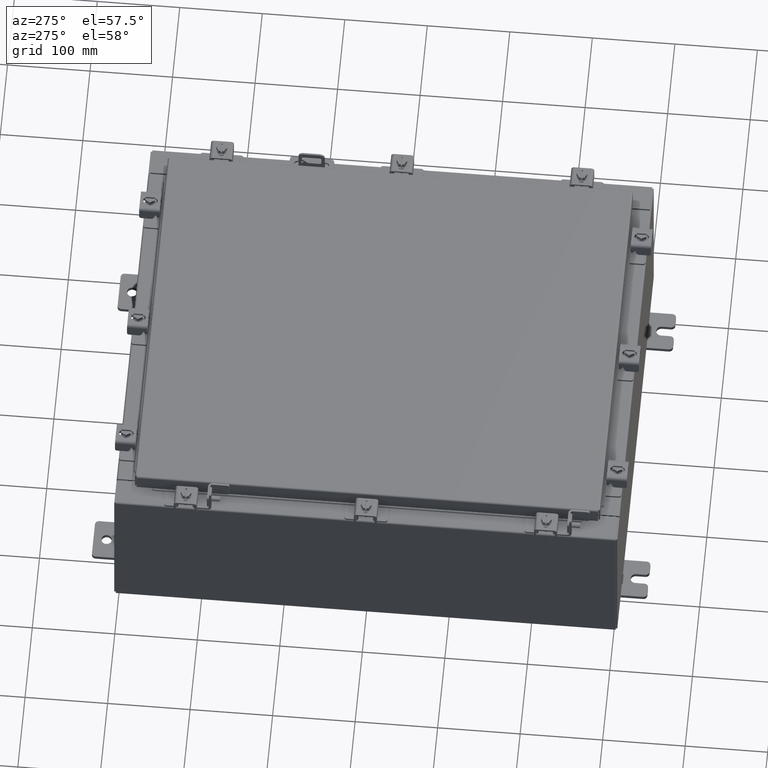
[diagram: clean part render]
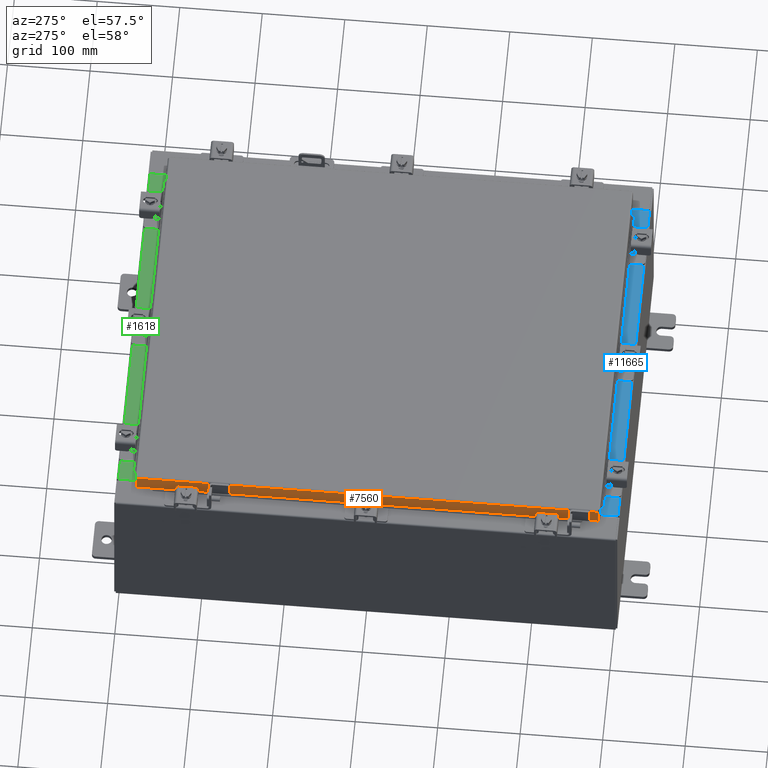
[diagram: same view with three faces highlighted in distinct colors, each labeled with its STEP entity id]
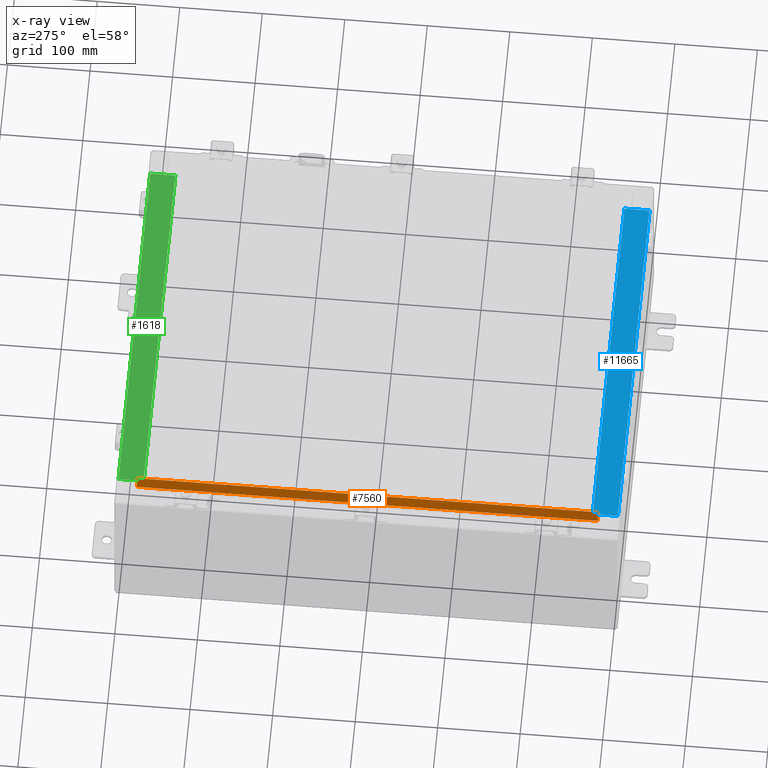
[diagram: x-ray of the same camera — body ghosted, the three highlighted faces saturated]
A machine part, auxiliary view with three faces highlighted in distinct colors.
The next image is the same camera in x-ray (body ghosted, the three faces saturated) — at least one of them is partly hidden behind the body in this view.
Their STEP definitions:

[orange] entity #7560 — the highlighted planar face has unit normal (1, 0, -0).
#227 = AXIS2_PLACEMENT_3D ( 'NONE', #7885, #14923, #4458 ) ;
#304 = DIRECTION ( 'NONE',  ( 4.379057701015054300E-047, 1.000000000000000000, 1.169666303398706600E-016 ) ) ;
#456 = VECTOR ( 'NONE', #8679, 39.37007874015748100 ) ;
#744 = VECTOR ( 'NONE', #10430, 39.37007874015748100 ) ;
#901 = VECTOR ( 'NONE', #4799, 39.37007874015748100 ) ;
#1503 = EDGE_CURVE ( 'NONE', #9897, #1837, #10684, .T. ) ;
#1673 = CARTESIAN_POINT ( 'NONE',  ( -9.077999999999999400, -11.00515786437627100, -0.07469999999999978000 ) ) ;
#1769 = EDGE_CURVE ( 'NONE', #16242, #13405, #10410, .T. ) ;
#1837 = VERTEX_POINT ( 'NONE', #17031 ) ;
#2161 = CARTESIAN_POINT ( 'NONE',  ( -9.078000000000001200, -11.09400000000000100, -0.8499999999999996400 ) ) ;
#4458 = DIRECTION ( 'NONE',  ( -2.818880942772360100E-015, 0.0000000000000000000, -1.000000000000000000 ) ) ;
#4731 = DIRECTION ( 'NONE',  ( -2.818880942772360100E-015, 6.982962677686267500E-015, -1.000000000000000000 ) ) ;
#4799 = DIRECTION ( 'NONE',  ( 4.379057701015054300E-047, 1.000000000000000000, 1.169666303398706600E-016 ) ) ;
#5086 = LINE ( 'NONE', #1673, #456 ) ;
#5358 = LINE ( 'NONE', #22582, #744 ) ;
#5718 = CARTESIAN_POINT ( 'NONE',  ( -9.078000000000001200, -11.00515786437626700, -0.8499999999999996400 ) ) ;
#6711 = DIRECTION ( 'NONE',  ( 3.297150052053607100E-031, -1.000000000000000000, -8.987264781119274900E-046 ) ) ;
#7108 = EDGE_CURVE ( 'NONE', #13405, #9897, #5086, .T. ) ;
#7560 = ADVANCED_FACE ( 'NONE', ( #21184 ), #20136, .F. ) ;
#7718 = EDGE_CURVE ( 'NONE', #1837, #13502, #5358, .T. ) ;
#7855 = EDGE_CURVE ( 'NONE', #13502, #9803, #21753, .T. ) ;
#7885 = CARTESIAN_POINT ( 'NONE',  ( -9.077999999999999400, -2.993152817254264100E-030, 2.585061485449906600E-014 ) ) ;
#8244 = CARTESIAN_POINT ( 'NONE',  ( -9.077999999999999400, 11.00515786437626700, 1.026992214834840400E-013 ) ) ;
#8679 = DIRECTION ( 'NONE',  ( -2.818880942772360100E-015, 6.982962677686267500E-015, -1.000000000000000000 ) ) ;
#9803 = VERTEX_POINT ( 'NONE', #19494 ) ;
#9897 = VERTEX_POINT ( 'NONE', #5718 ) ;
#10187 = EDGE_CURVE ( 'NONE', #16242, #9803, #14648, .T. ) ;
#10410 = LINE ( 'NONE', #12654, #19191 ) ;
#10430 = DIRECTION ( 'NONE',  ( -0.0000000000000000000, 1.000000000000000000, -0.0000000000000000000 ) ) ;
#10684 = LINE ( 'NONE', #2161, #901 ) ;
#10724 = CARTESIAN_POINT ( 'NONE',  ( -9.078000000000001200, -11.09400000000000100, -0.8499999999999996400 ) ) ;
#11609 = EDGE_LOOP ( 'NONE', ( #22216, #20262, #14785, #16106, #18145, #15568 ) ) ;
#12591 = CARTESIAN_POINT ( 'NONE',  ( -9.077999999999999400, 11.00515786437626900, -0.08770000000000007000 ) ) ;
#12654 = CARTESIAN_POINT ( 'NONE',  ( -9.077999999999999400, -11.09400000000000100, -0.08770000000000007000 ) ) ;
#13405 = VERTEX_POINT ( 'NONE', #15854 ) ;
#13502 = VERTEX_POINT ( 'NONE', #21346 ) ;
#14117 = VECTOR ( 'NONE', #4731, 39.37007874015748100 ) ;
#14648 = LINE ( 'NONE', #8244, #14117 ) ;
#14785 = ORIENTED_EDGE ( 'NONE', *, *, #7855, .F. ) ;
#14923 = DIRECTION ( 'NONE',  ( 1.000000000000000000, 3.297150052053607100E-031, -2.818880942772360100E-015 ) ) ;
#15568 = ORIENTED_EDGE ( 'NONE', *, *, #7108, .F. ) ;
#15854 = CARTESIAN_POINT ( 'NONE',  ( -9.077999999999999400, -11.00515786437626900, -0.08770000000000007000 ) ) ;
#16106 = ORIENTED_EDGE ( 'NONE', *, *, #7718, .F. ) ;
#16242 = VERTEX_POINT ( 'NONE', #12591 ) ;
#17031 = CARTESIAN_POINT ( 'NONE',  ( -9.077999999999994100, -10.25515786437626900, -0.8500000000000005300 ) ) ;
#18145 = ORIENTED_EDGE ( 'NONE', *, *, #1503, .F. ) ;
#19191 = VECTOR ( 'NONE', #6711, 39.37007874015748100 ) ;
#19494 = CARTESIAN_POINT ( 'NONE',  ( -9.078000000000001200, 11.00515786437627100, -0.8499999999999970900 ) ) ;
#20136 = PLANE ( 'NONE',  #227 ) ;
#20262 = ORIENTED_EDGE ( 'NONE', *, *, #10187, .T. ) ;
#21184 = FACE_OUTER_BOUND ( 'NONE', #11609, .T. ) ;
#21210 = VECTOR ( 'NONE', #304, 39.37007874015748100 ) ;
#21346 = CARTESIAN_POINT ( 'NONE',  ( -9.077999999999994100, 10.25515786437626900, -0.8500000000000005300 ) ) ;
#21753 = LINE ( 'NONE', #10724, #21210 ) ;
#22216 = ORIENTED_EDGE ( 'NONE', *, *, #1769, .F. ) ;
#22582 = CARTESIAN_POINT ( 'NONE',  ( -9.077999999999994100, -10.25515786437626900, -0.8500000000000005300 ) ) ;

[blue] entity #11665 — the highlighted planar face has unit normal (-0, -0, 1).
#1092 = LINE ( 'NONE', #15028, #15002 ) ;
#1319 = VECTOR ( 'NONE', #19324, 39.37007874015748100 ) ;
#2624 = EDGE_CURVE ( 'NONE', #20792, #3139, #19421, .T. ) ;
#2631 = CARTESIAN_POINT ( 'NONE',  ( 8.637200000000000000, -0.08769999999999965300, 4.000000000000000000 ) ) ;
#2901 = PLANE ( 'NONE',  #10776 ) ;
#3139 = VERTEX_POINT ( 'NONE', #12187 ) ;
#3468 = EDGE_CURVE ( 'NONE', #15677, #4896, #1092, .T. ) ;
#3484 = LINE ( 'NONE', #16828, #8116 ) ;
#3571 = CARTESIAN_POINT ( 'NONE',  ( 8.637200000000000000, -1.300299999999999800, 4.000000000000004400 ) ) ;
#4636 = DIRECTION ( 'NONE',  ( 0.0000000000000000000, 3.566381192773190000E-015, 1.000000000000000000 ) ) ;
#4896 = VERTEX_POINT ( 'NONE', #16822 ) ;
#5191 = EDGE_LOOP ( 'NONE', ( #20080, #20566, #5921, #12388 ) ) ;
#5921 = ORIENTED_EDGE ( 'NONE', *, *, #10352, .F. ) ;
#5930 = LINE ( 'NONE', #3571, #1319 ) ;
#6022 = VECTOR ( 'NONE', #7280, 39.37007874015748100 ) ;
#6290 = EDGE_CURVE ( 'NONE', #3139, #4896, #3484, .T. ) ;
#6333 = DIRECTION ( 'NONE',  ( -0.0000000000000000000, 1.000000000000000000, -3.566381192773190000E-015 ) ) ;
#6488 = CARTESIAN_POINT ( 'NONE',  ( 8.637200000000000000, -1.287299999999999900, 4.000000000000004400 ) ) ;
#6701 = FACE_OUTER_BOUND ( 'NONE', #5191, .T. ) ;
#7280 = DIRECTION ( 'NONE',  ( -1.000000000000000000, 0.0000000000000000000, 0.0000000000000000000 ) ) ;
#8116 = VECTOR ( 'NONE', #6333, 39.37007874015748100 ) ;
#10352 = EDGE_CURVE ( 'NONE', #15677, #20792, #5930, .T. ) ;
#10521 = CARTESIAN_POINT ( 'NONE',  ( 8.637200000000000000, -1.287299999999999900, 4.000000000000003600 ) ) ;
#10776 = AXIS2_PLACEMENT_3D ( 'NONE', #16806, #4636, #16884 ) ;
#11665 = ADVANCED_FACE ( 'NONE', ( #6701 ), #2901, .T. ) ;
#12187 = CARTESIAN_POINT ( 'NONE',  ( -8.637200000000000000, -1.287299999999999200, 4.000000000000004400 ) ) ;
#12388 = ORIENTED_EDGE ( 'NONE', *, *, #3468, .T. ) ;
#15002 = VECTOR ( 'NONE', #18427, 39.37007874015748100 ) ;
#15028 = CARTESIAN_POINT ( 'NONE',  ( -2.773851121247567100E-018, -0.08770000000000000000, 4.000000000000000900 ) ) ;
#15677 = VERTEX_POINT ( 'NONE', #2631 ) ;
#16806 = CARTESIAN_POINT ( 'NONE',  ( 0.0000000000000000000, 1.425992975200418500E-014, 4.000000000000000000 ) ) ;
#16822 = CARTESIAN_POINT ( 'NONE',  ( -8.637200000000000000, -0.08770000000000000000, 4.000000000000000000 ) ) ;
#16828 = CARTESIAN_POINT ( 'NONE',  ( -8.637200000000000000, -0.07469999999999973900, 4.000000000000000000 ) ) ;
#16884 = DIRECTION ( 'NONE',  ( 0.0000000000000000000, -1.000000000000000000, 3.566381192773190000E-015 ) ) ;
#18427 = DIRECTION ( 'NONE',  ( -1.000000000000000000, 3.162886113166609200E-017, -1.128005754888089100E-031 ) ) ;
#19324 = DIRECTION ( 'NONE',  ( -0.0000000000000000000, -1.000000000000000000, 3.566381192773190000E-015 ) ) ;
#19421 = LINE ( 'NONE', #10521, #6022 ) ;
#20080 = ORIENTED_EDGE ( 'NONE', *, *, #6290, .F. ) ;
#20566 = ORIENTED_EDGE ( 'NONE', *, *, #2624, .F. ) ;
#20792 = VERTEX_POINT ( 'NONE', #6488 ) ;

[green] entity #1618 — the highlighted planar face has unit normal (0, 0, 1).
#449 = CARTESIAN_POINT ( 'NONE',  ( 8.637200000000000000, -1.300299999999999800, 4.000000000000004400 ) ) ;
#506 = VECTOR ( 'NONE', #2179, 39.37007874015748100 ) ;
#1613 = CARTESIAN_POINT ( 'NONE',  ( 8.637200000000000000, -1.287299999999999900, 4.000000000000003600 ) ) ;
#1618 = ADVANCED_FACE ( 'NONE', ( #8529 ), #8418, .T. ) ;
#1830 = LINE ( 'NONE', #16078, #15186 ) ;
#2179 = DIRECTION ( 'NONE',  ( -0.0000000000000000000, -1.000000000000000000, 3.566381192773190000E-015 ) ) ;
#2643 = DIRECTION ( 'NONE',  ( 0.0000000000000000000, -1.000000000000000000, 3.566381192773190000E-015 ) ) ;
#5257 = VERTEX_POINT ( 'NONE', #18005 ) ;
#7318 = EDGE_CURVE ( 'NONE', #10933, #21622, #1830, .T. ) ;
#7941 = CARTESIAN_POINT ( 'NONE',  ( 8.637200000000000000, -0.08769999999999965300, 4.000000000000000000 ) ) ;
#8028 = ORIENTED_EDGE ( 'NONE', *, *, #7318, .T. ) ;
#8418 = PLANE ( 'NONE',  #11897 ) ;
#8526 = ORIENTED_EDGE ( 'NONE', *, *, #16945, .F. ) ;
#8529 = FACE_OUTER_BOUND ( 'NONE', #13538, .T. ) ;
#10233 = CARTESIAN_POINT ( 'NONE',  ( -8.637200000000000000, -0.08770000000000000000, 4.000000000000000000 ) ) ;
#10368 = VERTEX_POINT ( 'NONE', #14428 ) ;
#10933 = VERTEX_POINT ( 'NONE', #7941 ) ;
#10992 = VECTOR ( 'NONE', #20367, 39.37007874015748100 ) ;
#11897 = AXIS2_PLACEMENT_3D ( 'NONE', #13027, #13261, #2643 ) ;
#13027 = CARTESIAN_POINT ( 'NONE',  ( 0.0000000000000000000, 1.425992975200418500E-014, 4.000000000000000000 ) ) ;
#13261 = DIRECTION ( 'NONE',  ( 0.0000000000000000000, 3.566381192773190000E-015, 1.000000000000000000 ) ) ;
#13538 = EDGE_LOOP ( 'NONE', ( #17534, #14655, #8526, #8028 ) ) ;
#14425 = LINE ( 'NONE', #449, #506 ) ;
#14428 = CARTESIAN_POINT ( 'NONE',  ( -8.637200000000000000, -1.287299999999999200, 4.000000000000004400 ) ) ;
#14655 = ORIENTED_EDGE ( 'NONE', *, *, #19463, .F. ) ;
#15186 = VECTOR ( 'NONE', #17845, 39.37007874015748100 ) ;
#15715 = VECTOR ( 'NONE', #17336, 39.37007874015748100 ) ;
#16078 = CARTESIAN_POINT ( 'NONE',  ( -2.773851121247567100E-018, -0.08770000000000000000, 4.000000000000000900 ) ) ;
#16945 = EDGE_CURVE ( 'NONE', #10933, #5257, #14425, .T. ) ;
#17336 = DIRECTION ( 'NONE',  ( -1.000000000000000000, 0.0000000000000000000, 0.0000000000000000000 ) ) ;
#17534 = ORIENTED_EDGE ( 'NONE', *, *, #20112, .F. ) ;
#17845 = DIRECTION ( 'NONE',  ( -1.000000000000000000, 3.162886113166609200E-017, -1.128005754888089100E-031 ) ) ;
#18005 = CARTESIAN_POINT ( 'NONE',  ( 8.637200000000000000, -1.287299999999999900, 4.000000000000004400 ) ) ;
#18609 = CARTESIAN_POINT ( 'NONE',  ( -8.637200000000000000, -0.07469999999999973900, 4.000000000000000000 ) ) ;
#19463 = EDGE_CURVE ( 'NONE', #5257, #10368, #20359, .T. ) ;
#20112 = EDGE_CURVE ( 'NONE', #10368, #21622, #20873, .T. ) ;
#20359 = LINE ( 'NONE', #1613, #15715 ) ;
#20367 = DIRECTION ( 'NONE',  ( -0.0000000000000000000, 1.000000000000000000, -3.566381192773190000E-015 ) ) ;
#20873 = LINE ( 'NONE', #18609, #10992 ) ;
#21622 = VERTEX_POINT ( 'NONE', #10233 ) ;